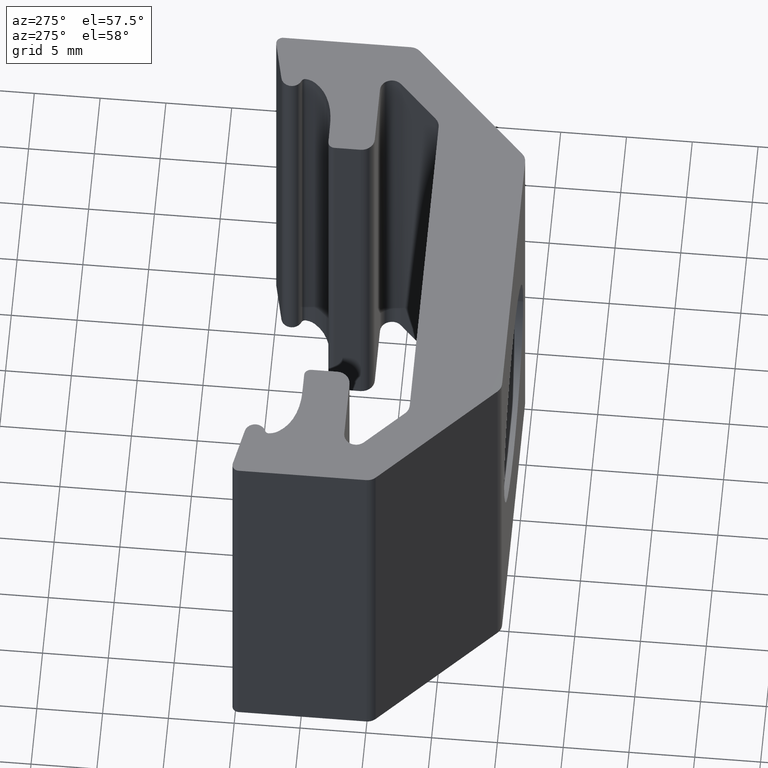
[diagram: clean part render]
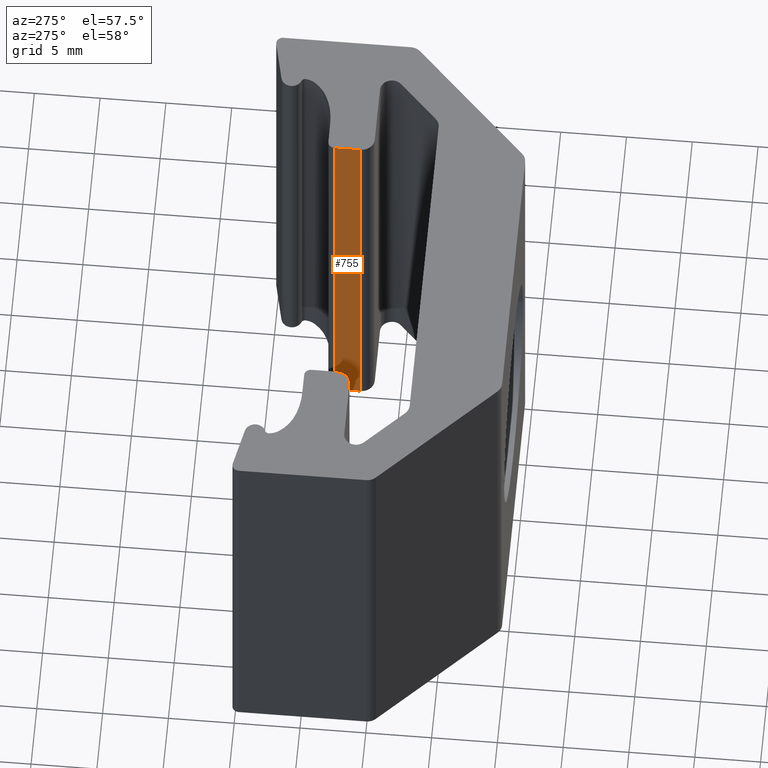
[diagram: same view with one face highlighted and labeled with its STEP entity id]
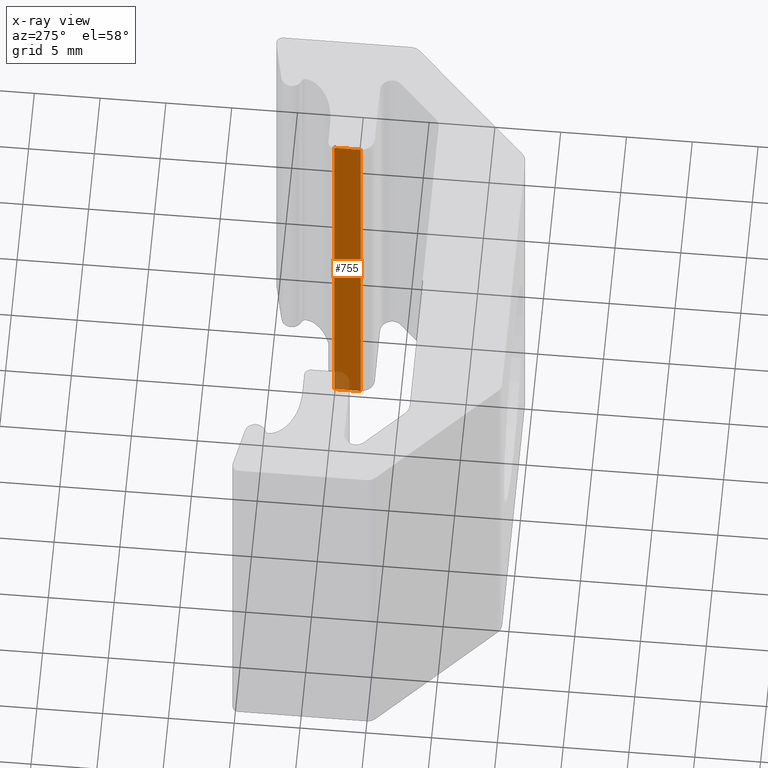
[diagram: x-ray of the same camera — body ghosted, the highlighted face saturated]
A machine part, auxiliary view. The second image highlights one B-rep face of the part: STEP entity #755.
The next image is the same camera in x-ray: the body ghosted, the highlighted face saturated — about 4% of this face is hidden behind the body in this view.
In plain terms, the highlighted planar face has unit normal (-1, 0, -0).
Its self-contained STEP definition (entity closure, byte-faithful):
#1 = LINE ( 'NONE', #258, #1412 ) ;
#34 = VERTEX_POINT ( 'NONE', #37 ) ;
#37 = CARTESIAN_POINT ( 'NONE',  ( 9.999999999997999822, 2.967902201490478564, 17.00000000000005684 ) ) ;
#46 = VECTOR ( 'NONE', #497, 1000.000000000000000 ) ;
#124 = ORIENTED_EDGE ( 'NONE', *, *, #757, .F. ) ;
#126 = DIRECTION ( 'NONE',  ( -1.000000000000000000, 0.000000000000000000, -1.000000000000000072E-17 ) ) ;
#203 = CARTESIAN_POINT ( 'NONE',  ( 9.999999999962998487, 2.967902201490478564, -16.99999999999994671 ) ) ;
#237 = VERTEX_POINT ( 'NONE', #601 ) ;
#258 = CARTESIAN_POINT ( 'NONE',  ( 9.999999999962998487, 4.953688639120483295, 17.00000000000005684 ) ) ;
#262 = CARTESIAN_POINT ( 'NONE',  ( 9.999999999962998487, 4.953688639120483295, -16.99999999999994671 ) ) ;
#272 = CARTESIAN_POINT ( 'NONE',  ( 9.999999999962998487, 2.967902201490478564, 17.00000000000005684 ) ) ;
#363 = AXIS2_PLACEMENT_3D ( 'NONE', #1224, #126, #1508 ) ;
#387 = ORIENTED_EDGE ( 'NONE', *, *, #1143, .F. ) ;
#412 = DIRECTION ( 'NONE',  ( 0.000000000000000000, -1.000000000000000000, 1.000000000000000078E-15 ) ) ;
#474 = EDGE_CURVE ( 'NONE', #237, #34, #1411, .T. ) ;
#497 = DIRECTION ( 'NONE',  ( 0.000000000000000000, 2.200000000000000003E-16, -1.000000000000000000 ) ) ;
#601 = CARTESIAN_POINT ( 'NONE',  ( 9.999999999974999554, 4.953688639120483295, 17.00000000000005684 ) ) ;
#630 = CARTESIAN_POINT ( 'NONE',  ( 9.999999999962998487, -10.60859461589952524, -16.99999999999994671 ) ) ;
#665 = VECTOR ( 'NONE', #412, 1000.000000000000000 ) ;
#685 = EDGE_CURVE ( 'NONE', #237, #1563, #1, .T. ) ;
#755 = ADVANCED_FACE ( 'NONE', ( #1260 ), #1632, .T. ) ;
#757 = EDGE_CURVE ( 'NONE', #1620, #1563, #1110, .T. ) ;
#892 = EDGE_LOOP ( 'NONE', ( #1114, #1273, #124, #387 ) ) ;
#1001 = DIRECTION ( 'NONE',  ( 0.000000000000000000, 0.000000000000000000, -1.000000000000000000 ) ) ;
#1110 = LINE ( 'NONE', #630, #1123 ) ;
#1114 = ORIENTED_EDGE ( 'NONE', *, *, #474, .F. ) ;
#1123 = VECTOR ( 'NONE', #1138, 1000.000000000000000 ) ;
#1138 = DIRECTION ( 'NONE',  ( 0.000000000000000000, 1.000000000000000000, 1.400000000000000069E-16 ) ) ;
#1143 = EDGE_CURVE ( 'NONE', #34, #1620, #1629, .T. ) ;
#1224 = CARTESIAN_POINT ( 'NONE',  ( 10.00000000000000000, 4.953688639120483295, 17.00000000000005684 ) ) ;
#1260 = FACE_OUTER_BOUND ( 'NONE', #892, .T. ) ;
#1273 = ORIENTED_EDGE ( 'NONE', *, *, #685, .T. ) ;
#1411 = LINE ( 'NONE', #1544, #665 ) ;
#1412 = VECTOR ( 'NONE', #1001, 1000.000000000000000 ) ;
#1508 = DIRECTION ( 'NONE',  ( -1.000000000000000072E-17, 0.000000000000000000, 1.000000000000000000 ) ) ;
#1544 = CARTESIAN_POINT ( 'NONE',  ( 10.00000000000000000, 4.953688639120483295, 17.00000000000005684 ) ) ;
#1563 = VERTEX_POINT ( 'NONE', #262 ) ;
#1620 = VERTEX_POINT ( 'NONE', #203 ) ;
#1629 = LINE ( 'NONE', #272, #46 ) ;
#1632 = PLANE ( 'NONE',  #363 ) ;